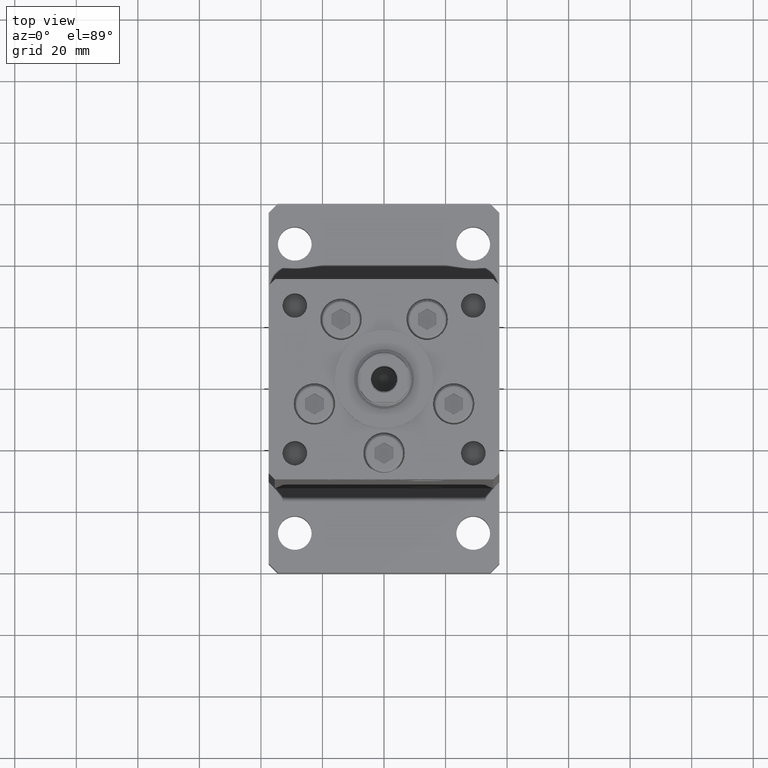
[diagram: clean part render]
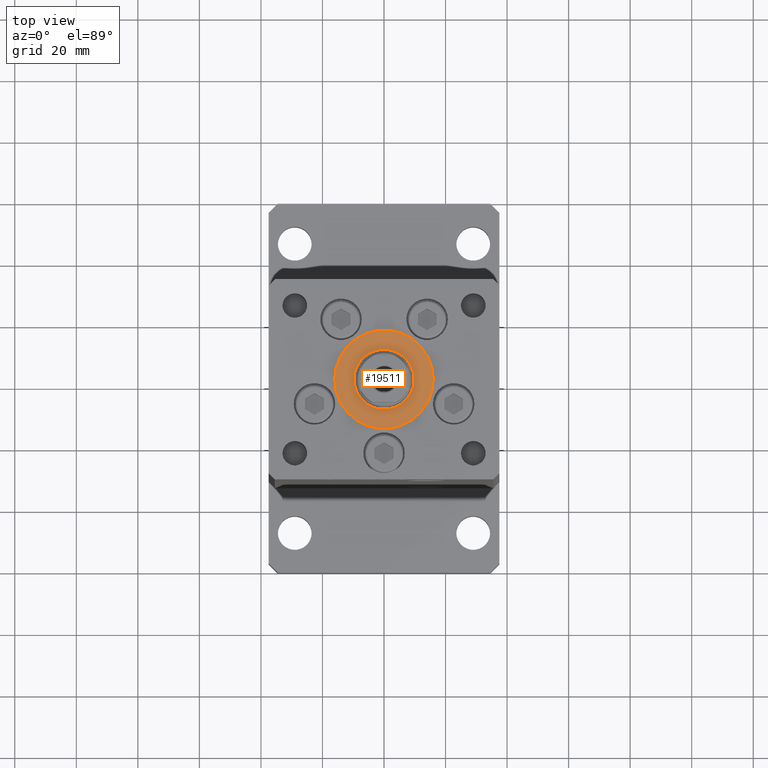
[diagram: same view with one face highlighted and labeled with its STEP entity id]
A machine part, top view. The second image highlights one B-rep face of the part: STEP entity #19511.
In plain terms, the highlighted planar face has unit normal (0, 0, 1).
Its self-contained STEP definition (entity closure, byte-faithful):
#2155 = FACE_BOUND ( 'NONE', #6821, .T. ) ;
#2421 = DIRECTION ( 'NONE',  ( 0.000000000000000000, 0.000000000000000000, 1.000000000000000000 ) ) ;
#3220 = DIRECTION ( 'NONE',  ( 0.000000000000000000, 0.000000000000000000, 1.000000000000000000 ) ) ;
#4848 = DIRECTION ( 'NONE',  ( 1.000000000000000000, 0.000000000000000000, 0.000000000000000000 ) ) ;
#5826 = CARTESIAN_POINT ( 'NONE',  ( 16.00000000000000355, -4.979459025271462852E-15, 2.000000000000000000 ) ) ;
#6492 = PLANE ( 'NONE',  #49668 ) ;
#6821 = EDGE_LOOP ( 'NONE', ( #48296, #38617 ) ) ;
#6929 = ORIENTED_EDGE ( 'NONE', *, *, #46424, .T. ) ;
#7065 = EDGE_CURVE ( 'NONE', #12580, #12208, #12007, .T. ) ;
#8572 = VERTEX_POINT ( 'NONE', #38451 ) ;
#8855 = DIRECTION ( 'NONE',  ( 1.000000000000000000, 0.000000000000000000, 0.000000000000000000 ) ) ;
#9703 = AXIS2_PLACEMENT_3D ( 'NONE', #40470, #2421, #36398 ) ;
#12007 = CIRCLE ( 'NONE', #34588, 9.750000000000001776 ) ;
#12208 = VERTEX_POINT ( 'NONE', #40549 ) ;
#12580 = VERTEX_POINT ( 'NONE', #38643 ) ;
#13461 = CARTESIAN_POINT ( 'NONE',  ( 0.000000000000000000, -6.938893903907228378E-15, 2.000000000000000000 ) ) ;
#16996 = DIRECTION ( 'NONE',  ( 0.000000000000000000, 0.000000000000000000, 1.000000000000000000 ) ) ;
#18231 = AXIS2_PLACEMENT_3D ( 'NONE', #13461, #16996, #8855 ) ;
#19511 = ADVANCED_FACE ( 'NONE', ( #2155, #52911 ), #6492, .T. ) ;
#19531 = CARTESIAN_POINT ( 'NONE',  ( 0.000000000000000000, -6.938893903907228378E-15, 2.000000000000000000 ) ) ;
#19855 = VERTEX_POINT ( 'NONE', #5826 ) ;
#29290 = CARTESIAN_POINT ( 'NONE',  ( 0.000000000000000000, -6.938893903907228378E-15, 2.000000000000000000 ) ) ;
#30361 = CIRCLE ( 'NONE', #18231, 16.00000000000000355 ) ;
#31600 = EDGE_CURVE ( 'NONE', #19855, #8572, #30361, .T. ) ;
#33287 = AXIS2_PLACEMENT_3D ( 'NONE', #29290, #42083, #4848 ) ;
#33670 = DIRECTION ( 'NONE',  ( 0.000000000000000000, 0.000000000000000000, 1.000000000000000000 ) ) ;
#34588 = AXIS2_PLACEMENT_3D ( 'NONE', #51289, #33670, #42907 ) ;
#36398 = DIRECTION ( 'NONE',  ( 1.000000000000000000, 0.000000000000000000, 0.000000000000000000 ) ) ;
#36877 = EDGE_CURVE ( 'NONE', #12208, #12580, #42670, .T. ) ;
#38451 = CARTESIAN_POINT ( 'NONE',  ( -16.00000000000000355, -6.938893903907228378E-15, 2.000000000000000000 ) ) ;
#38617 = ORIENTED_EDGE ( 'NONE', *, *, #36877, .F. ) ;
#38643 = CARTESIAN_POINT ( 'NONE',  ( 9.750000000000001776, -6.938893903907228378E-15, 2.000000000000000000 ) ) ;
#40470 = CARTESIAN_POINT ( 'NONE',  ( 0.000000000000000000, -6.938893903907228378E-15, 2.000000000000000000 ) ) ;
#40549 = CARTESIAN_POINT ( 'NONE',  ( -9.750000000000001776, -5.744863274738558317E-15, 2.000000000000000000 ) ) ;
#42083 = DIRECTION ( 'NONE',  ( 0.000000000000000000, 0.000000000000000000, 1.000000000000000000 ) ) ;
#42670 = CIRCLE ( 'NONE', #9703, 9.750000000000001776 ) ;
#42907 = DIRECTION ( 'NONE',  ( 1.000000000000000000, 0.000000000000000000, 0.000000000000000000 ) ) ;
#46424 = EDGE_CURVE ( 'NONE', #8572, #19855, #52360, .T. ) ;
#46538 = EDGE_LOOP ( 'NONE', ( #6929, #50470 ) ) ;
#48296 = ORIENTED_EDGE ( 'NONE', *, *, #7065, .F. ) ;
#49668 = AXIS2_PLACEMENT_3D ( 'NONE', #19531, #3220, #52638 ) ;
#50470 = ORIENTED_EDGE ( 'NONE', *, *, #31600, .T. ) ;
#51289 = CARTESIAN_POINT ( 'NONE',  ( 0.000000000000000000, -6.938893903907228378E-15, 2.000000000000000000 ) ) ;
#52360 = CIRCLE ( 'NONE', #33287, 16.00000000000000355 ) ;
#52638 = DIRECTION ( 'NONE',  ( 1.000000000000000000, 0.000000000000000000, -0.000000000000000000 ) ) ;
#52911 = FACE_OUTER_BOUND ( 'NONE', #46538, .T. ) ;